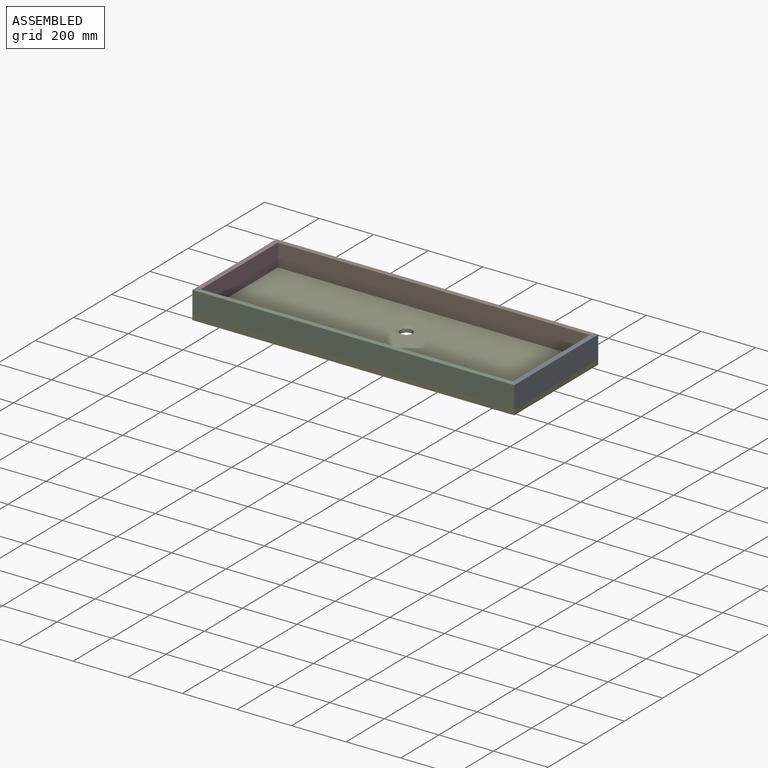
[diagram: assembled view]
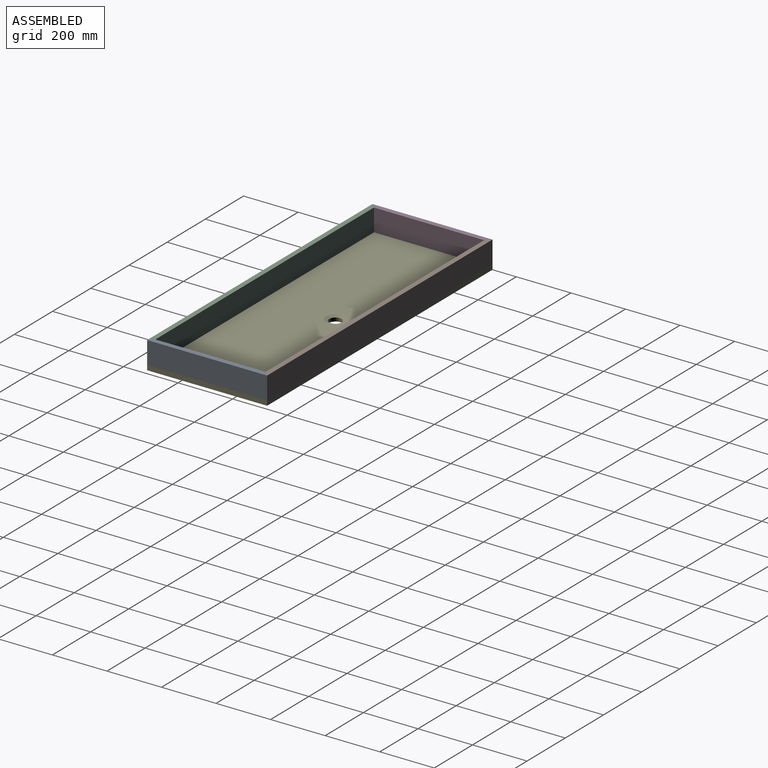
[diagram: assembled view, second angle]
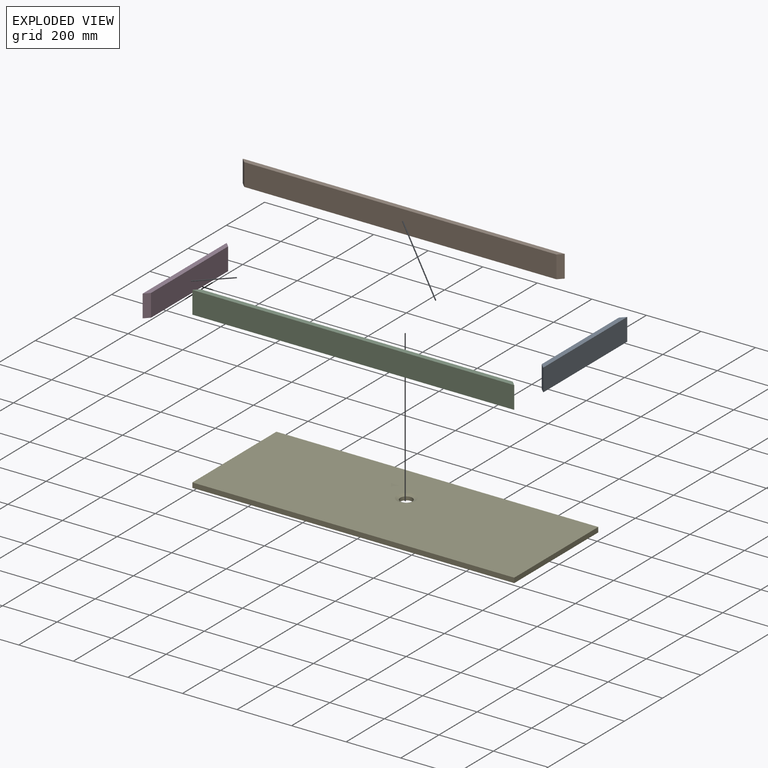
[diagram: exploded view]
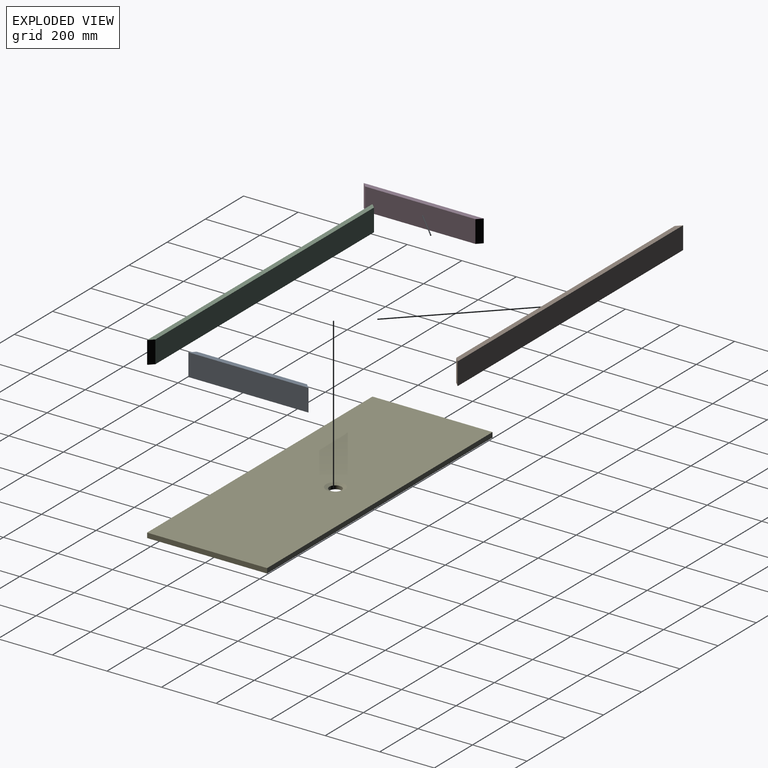
[diagram: exploded view, second angle]
ASSEMBLY  parts=5 mates=4
PART A: 6 faces, bbox 18x440x82 mm
  f0: plane 440x18mm, normal (0,0,-1), area 7596mm2, adj f2,f3,f4,f5
  f1: plane 440x18mm, normal (0,0,1), area 7596mm2, adj f2,f3,f4,f5
  f2: plane 440x82mm, normal (1,0,0), area 36080mm2, adj f0,f1,f4,f5
  f3: plane 404x82mm, normal (-1,0,0), area 33128mm2, adj f0,f1,f4,f5
  f4: plane 82x18mm, normal (-0.71,0.71,0), area 2087.4mm2, adj f0,f1,f2,f3
  f5: plane 82x18mm, normal (-0.71,-0.71,0), area 2087.4mm2, adj f0,f1,f2,f3
PART B: 6 faces, bbox 1180x18x82 mm
  f0: plane 1180x18mm, normal (0,0,-1), area 20916mm2, adj f2,f3,f4,f5
  f1: plane 1180x18mm, normal (0,0,1), area 20916mm2, adj f2,f3,f4,f5
  f2: plane 1144x82mm, normal (0,-1,0), area 93808mm2, adj f0,f1,f4,f5
  f3: plane 1180x82mm, normal (0,1,0), area 96760mm2, adj f0,f1,f4,f5
  f4: plane 82x18mm, normal (-0.71,-0.71,0), area 2087.4mm2, adj f0,f1,f2,f3
  f5: plane 82x18mm, normal (0.71,-0.71,0), area 2087.4mm2, adj f0,f1,f2,f3
PART C: same geometry as B
PART D: same geometry as A
PART E: 8 faces, bbox 1180x440x18 mm
  f0: plane 440x18mm, normal (1,0,0), area 7920mm2, adj f1,f3,f5,f6
  f1: plane 1180x18mm, normal (0,1,0), area 21240mm2, adj f0,f2,f5,f6
  f2: plane 440x18mm, normal (-1,0,0), area 7920mm2, adj f1,f3,f5,f6
  f3: plane 1180x18mm, normal (0,-1,0), area 21240mm2, adj f0,f2,f5,f6
  f4: cylinder r=22.5mm len=45mm, axis (0,0,-1), area 1837.8mm2, adj f6,f7
  f5: plane 1180x440mm, normal (0,0,1), area 515445.3mm2, adj f0,f1,f2,f3,f7
  f6: plane 1180x440mm, normal (0,0,-1), area 517609.6mm2, adj f0,f1,f2,f3,f4
  f7: cone r=22.5mm half-angle=67.5deg, axis (0,0,1), area 2342.6mm2, adj f4,f5
PLACE A t=(572,1513.22,-285.77)mm
PLACE B rot(axis=(1,0,0),0deg) t=(1915.64,220,1039.56)mm
PLACE C rot(axis=(0,0,1),180deg) t=(-1915.64,-220,1039.56)mm
PLACE D rot(axis=(0,0,1),180deg) t=(-572,-1513.22,-285.77)mm
PLACE E at identity
MATE fastened D.f4 <-> C.f5  axis (0.71,-0.71,0) through (-581,-211,59)mm
MATE fastened B.f4 <-> D.f5  axis (-0.71,-0.71,0) through (-581,211,59)mm
MATE fastened B.f5 <-> A.f4  axis (0.71,-0.71,0) through (581,211,59)mm
MATE fastened B.f0 <-> E.f5  axis (0,0,-1) through (0,220,18)mm
